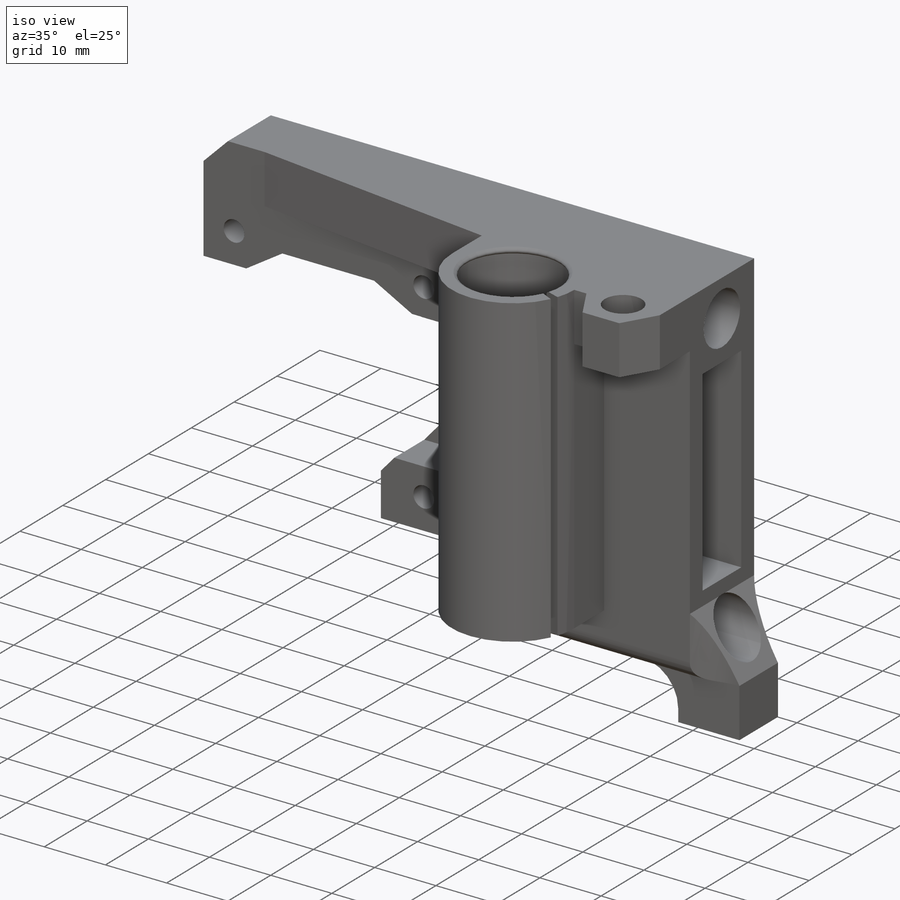
[diagram: iso view]
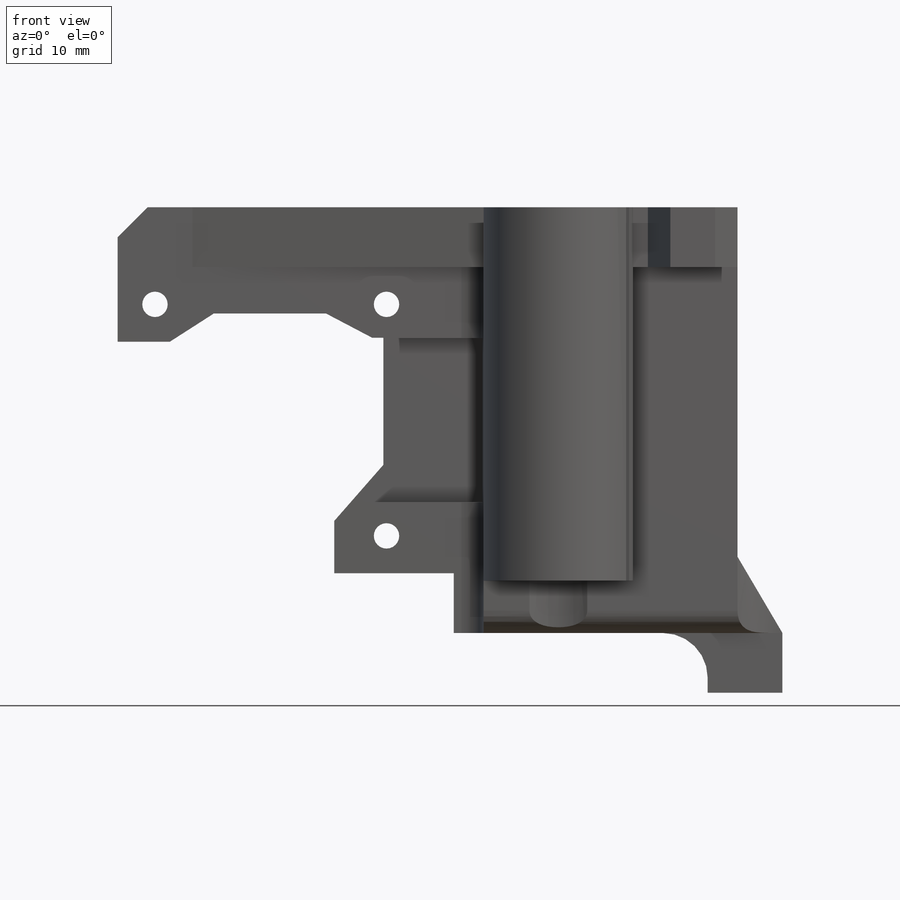
[diagram: front view]
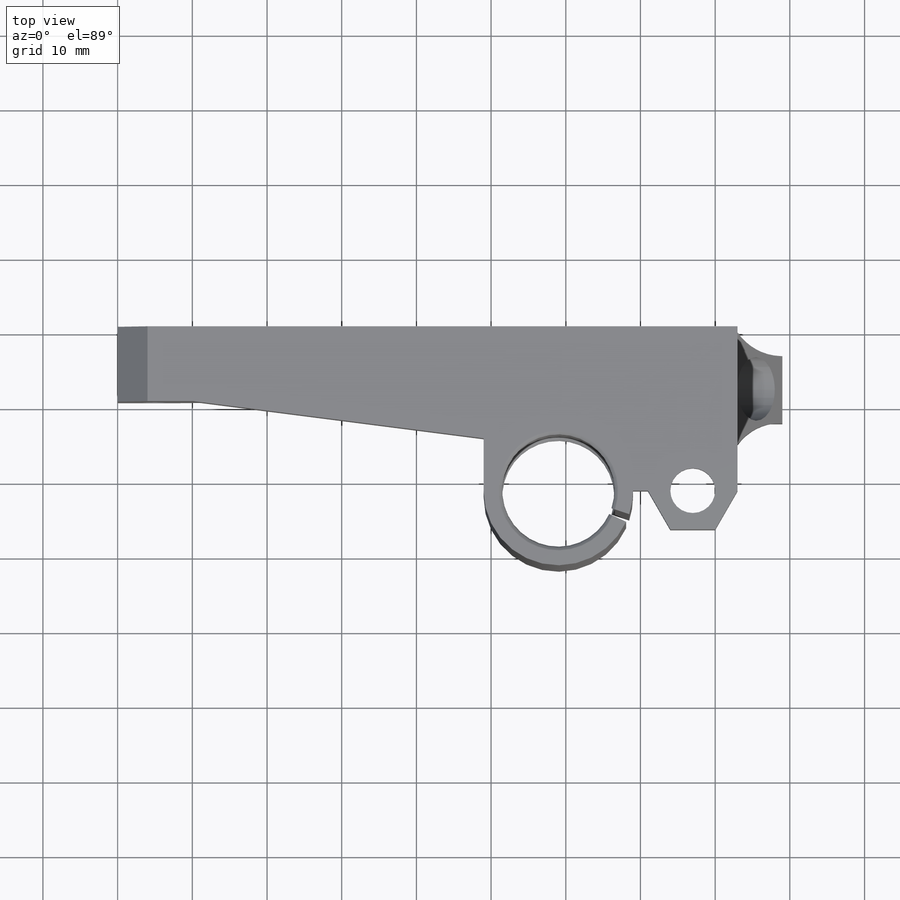
[diagram: top view]
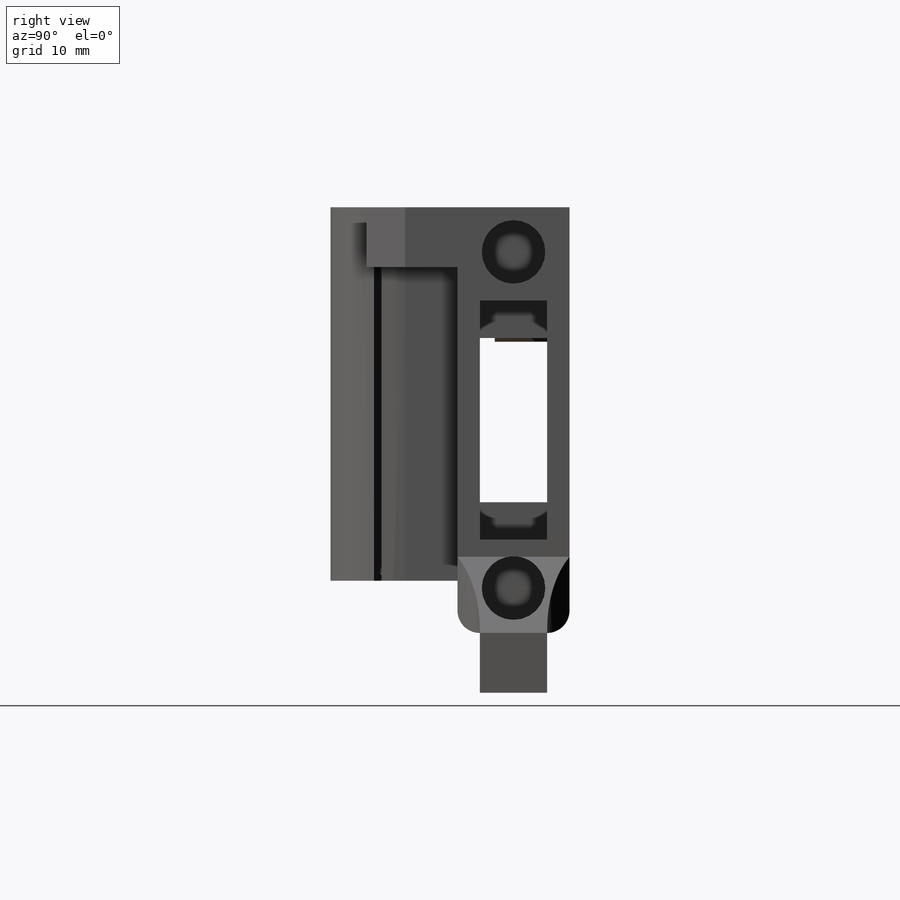
[diagram: right view]
SOLIDWORKS PART (.sldprt)
format: sldprt  version: not decoded by parser v0  size: 548,352 bytes
history: native  units: mm
features: sketch x14, extrude x7, cut_extrude x6, plane x3, fillet x3, chamfer x2, material x1, sweep x1 (+10 scaffold rows collapsed)
feature tree (47):
  scaffold x10  (default folders/planes/origin — collapsed)
  material  "Matériau <non spécifié>"
  plane  "Plan de face"
  plane  "Plan de dessus"
  plane  "Plan de droite"
  sketch  "Esquisse1"  dims[c1.D1=82.0mm c1.D2=57.0mm c1.D3=37.0mm c1.D4=8.0mm c1.D5=16.0mm c1.D6=15.0mm c1.D7=18.0mm c1.D8=17.0mm c1.D9=29.0mm c1.D10=7.0mm c2.D5=16.0mm c2.D6=7.0mm c2.D8=10.0mm c2.D9=17.0mm c2.D11=~7.324716mm c3.D11=45.0deg c3.D12=1.5mm c3.D13=7.0mm c3.D14=15.0mm c3.D15=7.0mm c4.D11=~7.528483mm c5.D11=40.0deg c6.D11=~7.324716mm c7.D11=41.2deg c7.D16=~3.781275mm c8.D16=~147.303961deg c9.D16=7.0mm c9.D3=83.0mm c10.D16=38.0mm]
  extrude  "Boss.-Extru.1"  Depth=10mm
  sketch  "Esquisse2"  dims[D1=34.0mm]
  extrude  "Boss.-Extru.2"  Depth=5mm
  sketch  "Esquisse3"  dims[D1=10.0mm]
  extrude  "Boss.-Extru.3"  Depth=8mm
  sketch  "Esquisse4"  dims[D1=20.0mm D2=22.0mm D3=24.0mm D4=~2.858572mm]
  extrude  "Boss.-Extru.4"  Depth=50mm
  sketch  "Esquisse5"  dims[c1.D2=~12.124356mm c1.D1=17.0mm c2.D2=6.0mm c2.D1=22.0mm c3.D2=2.0mm]
  extrude  "Boss.-Extru.5"  Depth=8mm
  sketch  "Esquisse7"  dims[D1=8.0mm D2=6.0mm]
  cut_extrude  "Enlèv. mat.-Extru.1"  Depth=4.5mm
  sketch  "Esquisse8"  dims[D1=6.0mm D2=18.0mm]
  cut_extrude  "Enlèv. mat.-Extru.2"  [1 undecoded]
  sketch  "Esquisse9"  dims[c1.D3=16.0mm c1.D1=22.0mm c1.D2=24.0mm c1.D4=10.0mm c1.D5=3.0mm c1.D6=1.2mm c2.D2=18.0mm]
  cut_extrude  "Enlèv. mat.-Extru.3"  Depth=50mm
  sketch  "Esquisse10"  dims[D1=8.5mm D2=45.0mm D3=6.0mm D4=9.0mm D5=32.0mm]
  cut_extrude  "Enlèv. mat.-Extru.4"  Depth=32mm
  fillet  "Congé1"  Radius=3mm
  sketch  "Esquisse12"  dims[c1.D1=22.0mm c1.D2=9.0mm c2.D1=22.0mm c2.D2=9.0mm]
  cut_extrude  "Enlèv. mat.-Extru.6"  [1 undecoded]
  sketch  "Esquisse13"  dims[D3=3.4mm D1=31.0mm D2=31.0mm D4=5.0mm D5=5.0mm]
  cut_extrude  "Enlèv. mat.-Extru.7"  [1 undecoded]
  sketch  "Esquisse14"  dims[D1=4.0mm]
  extrude  "Boss.-Extru.6"  Depth=8mm
  sketch  "Esquisse15"
  extrude  "Boss.-Extru.7"  Depth=6mm
  fillet  "Congé2"  Radius=6mm
  chamfer  "Chanfrein1"  Distance=4mm Angle=45deg
  sketch  "Esquisse17"  dims[D1=1.0mm D2=0.5mm D3=0.5mm D4=1.0mm D5=0.5mm D6=0.15mm]
  sweep  "Balayage1"
  chamfer  "Chanfrein2"  Distance=10.2mm Angle=30.5deg
  fillet  "Congé3"  Radius=7mm
decode coverage: 28 of 33 modeling features carry decoded parameters
note: ~ marks probable driven/reference dimensions
note: 3 parameter values undecoded
summary: no parameter record found for 3 features
note: suppression state not decoded; provenance and decode notes live in map.json
